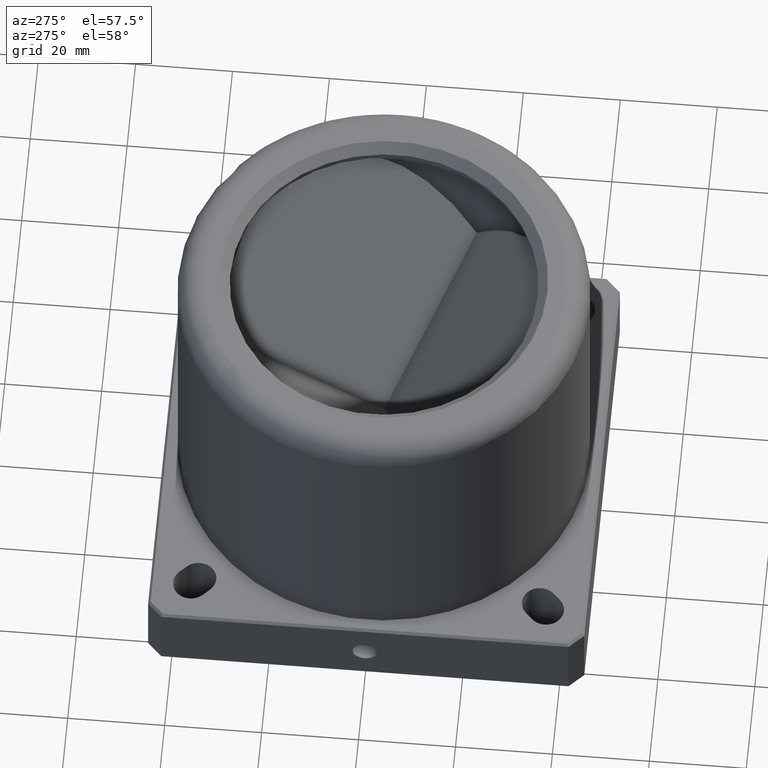
[diagram: clean part render]
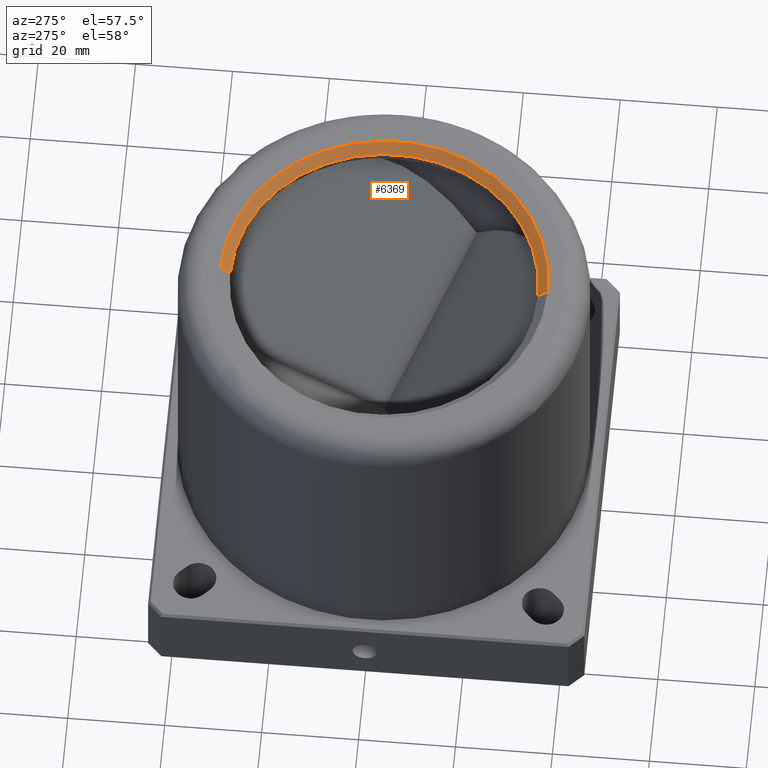
[diagram: same view with one face highlighted and labeled with its STEP entity id]
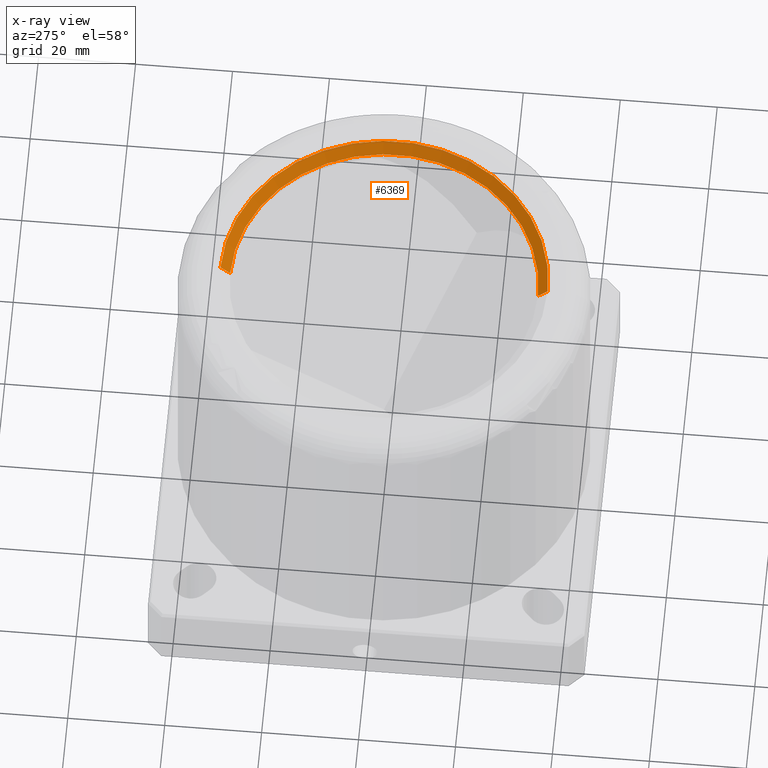
[diagram: x-ray of the same camera — body ghosted, the highlighted face saturated]
A machine part, auxiliary view. The second image highlights one B-rep face of the part: STEP entity #6369.
The next image is the same camera in x-ray: the body ghosted, the highlighted face saturated — about 0% of this face is hidden behind the body in this view.
In plain terms, the highlighted conical surface has half-angle 45 deg.
Its self-contained STEP definition (entity closure, byte-faithful):
#731 = DIRECTION ( 'NONE',  ( -2.590652556828221000E-015, 0.7071067811865450200, 0.7071067811865500200 ) ) ;
#956 = ORIENTED_EDGE ( 'NONE', *, *, #5417, .T. ) ;
#1218 = ORIENTED_EDGE ( 'NONE', *, *, #7026, .F. ) ;
#1617 = LINE ( 'NONE', #9813, #10987 ) ;
#1952 = CARTESIAN_POINT ( 'NONE',  ( -1.227960459690711600E-013, 33.75000000000000000, 80.00000000000000000 ) ) ;
#2227 = DIRECTION ( 'NONE',  ( -3.747002708109905700E-015, 1.000000000000000000, 0.0000000000000000000 ) ) ;
#2658 = AXIS2_PLACEMENT_3D ( 'NONE', #10087, #4656, #10977 ) ;
#3367 = VERTEX_POINT ( 'NONE', #1952 ) ;
#3785 = CARTESIAN_POINT ( 'NONE',  ( -1.193776442755497100E-013, 31.75000000000000000, 78.00000000000000000 ) ) ;
#4656 = DIRECTION ( 'NONE',  ( -8.326672684688669100E-017, -0.0000000000000000000, -1.000000000000000000 ) ) ;
#4785 = CARTESIAN_POINT ( 'NONE',  ( 3.498761975944386500E-015, 2.316515400426250000E-015, 78.00000000000000000 ) ) ;
#5036 = AXIS2_PLACEMENT_3D ( 'NONE', #4785, #11108, #5664 ) ;
#5145 = VERTEX_POINT ( 'NONE', #7794 ) ;
#5282 = FACE_OUTER_BOUND ( 'NONE', #10558, .T. ) ;
#5417 = EDGE_CURVE ( 'NONE', #9082, #5145, #8118, .T. ) ;
#5582 = CARTESIAN_POINT ( 'NONE',  ( 1.259934538812251600E-013, -33.75000000000000000, 80.00000000000000000 ) ) ;
#5646 = VERTEX_POINT ( 'NONE', #3785 ) ;
#5664 = DIRECTION ( 'NONE',  ( -3.747002708109905700E-015, 1.000000000000000000, 0.0000000000000000000 ) ) ;
#5760 = VECTOR ( 'NONE', #6550, 1000.000000000000000 ) ;
#5878 = CARTESIAN_POINT ( 'NONE',  ( 1.224452812767221900E-013, -31.75000000000000000, 78.00000000000000000 ) ) ;
#6369 = ADVANCED_FACE ( 'NONE', ( #5282 ), #10240, .F. ) ;
#6520 = CIRCLE ( 'NONE', #5036, 31.75000000000000000 ) ;
#6550 = DIRECTION ( 'NONE',  ( 2.621813885605955600E-015, -0.7071067811865450200, 0.7071067811865500200 ) ) ;
#7026 = EDGE_CURVE ( 'NONE', #5646, #3367, #1617, .T. ) ;
#7794 = CARTESIAN_POINT ( 'NONE',  ( 1.259934538812251600E-013, -33.75000000000000000, 80.00000000000000000 ) ) ;
#8118 = LINE ( 'NONE', #5582, #5760 ) ;
#8894 = EDGE_CURVE ( 'NONE', #9082, #5646, #6520, .T. ) ;
#9082 = VERTEX_POINT ( 'NONE', #5878 ) ;
#9431 = CARTESIAN_POINT ( 'NONE',  ( 3.665295429638160400E-015, 2.316515400426250000E-015, 80.00000000000000000 ) ) ;
#9813 = CARTESIAN_POINT ( 'NONE',  ( -1.227960459690711600E-013, 33.75000000000000000, 80.00000000000000000 ) ) ;
#10044 = ORIENTED_EDGE ( 'NONE', *, *, #8894, .F. ) ;
#10087 = CARTESIAN_POINT ( 'NONE',  ( 3.665295429638160400E-015, 2.316515400426250000E-015, 80.00000000000000000 ) ) ;
#10240 = CONICAL_SURFACE ( 'NONE', #11678, 33.75000000000000000, 0.7853981633974447300 ) ;
#10361 = DIRECTION ( 'NONE',  ( 8.326672684688669100E-017, 0.0000000000000000000, 1.000000000000000000 ) ) ;
#10510 = CIRCLE ( 'NONE', #2658, 33.75000000000000000 ) ;
#10558 = EDGE_LOOP ( 'NONE', ( #10044, #956, #11417, #1218 ) ) ;
#10977 = DIRECTION ( 'NONE',  ( -3.747002708109905700E-015, 1.000000000000000000, 0.0000000000000000000 ) ) ;
#10987 = VECTOR ( 'NONE', #731, 1000.000000000000000 ) ;
#11108 = DIRECTION ( 'NONE',  ( 8.326672684688669100E-017, 0.0000000000000000000, 1.000000000000000000 ) ) ;
#11152 = EDGE_CURVE ( 'NONE', #3367, #5145, #10510, .T. ) ;
#11417 = ORIENTED_EDGE ( 'NONE', *, *, #11152, .F. ) ;
#11678 = AXIS2_PLACEMENT_3D ( 'NONE', #9431, #10361, #2227 ) ;